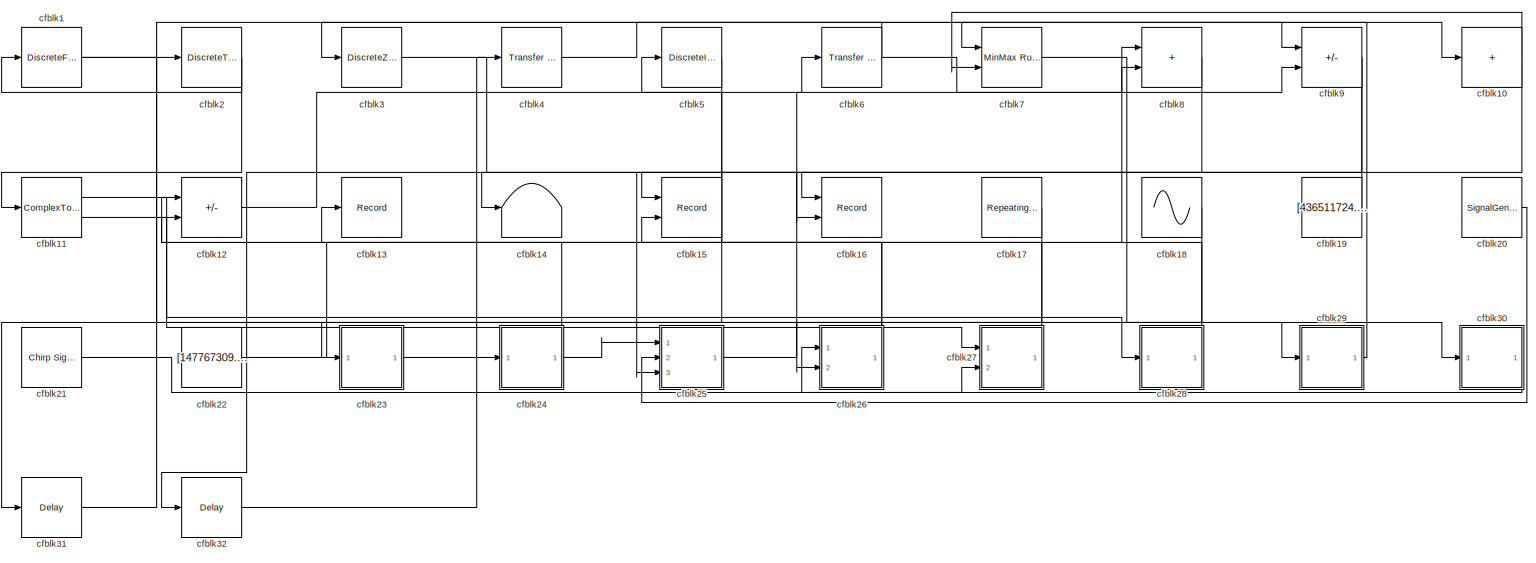
[diagram: root canvas - part 1/1, most of the canvas]
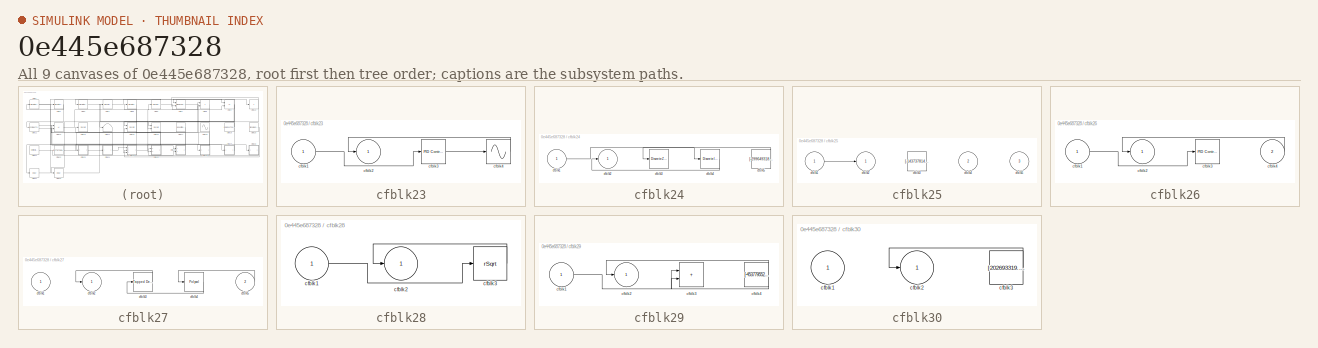
[diagram: thumbnail index - all 9 canvases of the model, root first then tree order]
MODEL slx_0e445e687328
KIND model
CONFIG AbsTol = auto
CONFIG EnableMultiTasking = off
CONFIG FixedStep = auto
CONFIG MaxStep = auto
CONFIG MinStep = auto
CONFIG RelTol = 1e-3
CONFIG SampleTimeConstraint = Unconstrained
CONFIG SolverName = VariableStepAuto
CONFIG StartTime = 0.0
CONFIG StopTime = 10.0
BLOCK [DiscreteFir] cfblk1
  InputPortMap = u0
  OutputPortMap = o0
  Ports = [1, 1]
  SampleTime = 1
BLOCK [Sum] cfblk10
  IconShape = rectangular
  Inputs = +
  Ports = [1, 1]
BLOCK [ComplexToRealImag] cfblk11
  Ports = [1, 2]
BLOCK [Sum] cfblk12
  IconShape = rectangular
  Inputs = +-
  Ports = [2, 1]
BLOCK [Record] cfblk13
  FileSettingsInternal = {"entries":[{"content":{"excelSettings":{"content":{},"type":"Streamout.ExcelSettings"}},"type":"Streamout.FileSettingStorage","uuid":"0dafdf08-92ae-40cf-9e6a-a762af9498c7"}],"packageUris":["http://schema.mathworks.com/mf0/streamout_blocks/R2020a"],"version":"1.0"}
  Ports = [1]
  SignalsInternal = {"entries":[{"content":{"signals":[{"content":{"blockPath":["sampleModel131/cfblk13"],"channel":[],"dimensions":[1],"domain":"sampleModel131/cfblk13","lineColor":"#22b573","plots":[1],"port":1,"sid":[""],"signalID":4575,"signalName":"cfblk26"},"type":"RecordBlkView.Signal","uuid":"084b91c0-7631-4268-b8fb-f11a57527963"}]},"type":"RecordBlkView.InputSignals","uuid":"c79ed039-d22e-410a-beab-e4b3db21d...<+97ch>
  VisualizationBindings = {"sparklinesplugin":{"info":[{"bindingParametersList":[],"subplotID":1}]}}
BLOCK [Terminator] cfblk14
BLOCK [Record] cfblk15
  CompatibilityTag = XY
  FileSettingsInternal = {"entries":[{"content":{"excelSettings":{"content":{},"type":"Streamout.ExcelSettings"}},"type":"Streamout.FileSettingStorage","uuid":"18a37b37-605e-492c-8646-a6a7e7d8f3f6"}],"packageUris":["http://schema.mathworks.com/mf0/streamout_blocks/R2020a"],"version":"1.0"}
  Layout = [1 1]
  Ports = [2]
  SignalsInternal = {"entries":[{"content":{"signals":[{"content":{"blockPath":["sampleModel131/cfblk15"],"channel":[],"dimensions":[1],"domain":"sampleModel131/cfblk15","lineColor":"#a2142f","plots":[1],"port":1,"sid":[""],"signalID":4579,"signalName":"cfblk9"},"type":"RecordBlkView.Signal","uuid":"a4098879-6fb2-4183-a0f4-0e141c41067b"},{"content":{"blockPath":["sampleModel131/cfblk15"],"channel":[],"dimensions":[1]...<+382ch>
  VisualizationBindings = {"xyplotplugin":{"info":[{"series":[{"bindingParametersList":[{"parameter":"X-Axis","signalID":4579,"signalName":"cfblk9"},{"parameter":"Y-Axis","signalID":4583,"signalName":"cfblk28"}],"seriesID":58719}],"subplotID":1}]}}
BLOCK [Record] cfblk16
  CompatibilityTag = XY
  FileSettingsInternal = {"entries":[{"content":{"excelSettings":{"content":{},"type":"Streamout.ExcelSettings"}},"type":"Streamout.FileSettingStorage","uuid":"c014c876-7dc6-492a-b67c-592b12338158"}],"packageUris":["http://schema.mathworks.com/mf0/streamout_blocks/R2020a"],"version":"1.0"}
  Layout = [1 1]
  Ports = [2]
  SignalsInternal = {"entries":[{"content":{"signals":[{"content":{"blockPath":["sampleModel131/cfblk16"],"channel":[],"dimensions":[1],"domain":"sampleModel131/cfblk16","lineColor":"#a2142f","plots":[1],"port":1,"sid":[""],"signalID":4587,"signalName":"cfblk19"},"type":"RecordBlkView.Signal","uuid":"e6d16daa-b932-445c-be97-a0ef0eeb0300"},{"content":{"blockPath":["sampleModel131/cfblk16"],"channel":[],"dimensions":[1...<+382ch>
  VisualizationBindings = {"xyplotplugin":{"info":[{"series":[{"bindingParametersList":[{"parameter":"X-Axis","signalID":4587,"signalName":"cfblk19"},{"parameter":"Y-Axis","signalID":4591,"signalName":"cfblk3"}],"seriesID":17240}],"subplotID":1}]}}
BLOCK [Reference] cfblk17  REF=simulink/Sources/Repeating
Sequence
Stair
  Ports = [0, 1]
  SourceBlock = simulink/Sources/Repeating\nSequence\nStair
  SourceProductBaseCode = SL
  SourceType = Repeating Sequence Stair
BLOCK [Sin] cfblk18
  Amplitude = [-701724139.674451]
  Bias = [453797021.256787]
  Ports = [0, 1]
  SampleTime = 0
BLOCK [Constant] cfblk19
  SampleTime = 1
  Value = [436511724.406986]
BLOCK [DiscreteTransferFcn] cfblk2
  InputPortMap = u0
  Ports = [1, 1]
  SampleTime = 1
BLOCK [SignalGenerator] cfblk20
  Amplitude = [57514629.615493]
  Ports = [0, 1]
  Units = rad/sec
BLOCK [Reference] cfblk21  REF=simulink/Sources/Chirp Signal
  Ports = [0, 1]
  SourceBlock = simulink/Sources/Chirp Signal
  SourceProductBaseCode = SL
  SourceType = chirp
BLOCK [Constant] cfblk22
  SampleTime = 1
  Value = [147767309.254544]
BLOCK [SubSystem] cfblk23
  Ports = [1, 1]
  RequestExecContextInheritance = off
BLOCK [Inport] cfblk23/cfblk1
BLOCK [Outport] cfblk23/cfblk2
BLOCK [Reference] cfblk23/cfblk3  REF=slpidlib/PID Controller
  Ports = [1, 1]
  SourceBlock = slpidlib/PID Controller
  SourceProductBaseCode = SL
  SourceType = PID 1dof
BLOCK [Sin] cfblk23/cfblk4
  Ports = [1, 1]
  SampleTime = 0
  TimeSource = Use external signal
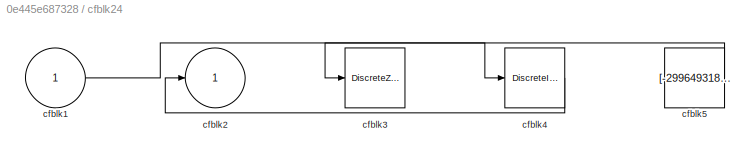
BLOCK [SubSystem] cfblk24
  Ports = [1, 1]
  RequestExecContextInheritance = off
BLOCK [Inport] cfblk24/cfblk1
BLOCK [Outport] cfblk24/cfblk2
BLOCK [DiscreteZeroPole] cfblk24/cfblk3
  Gain = 1
  Poles = [0 0.5]
BLOCK [DiscreteIntegrator] cfblk24/cfblk4
  ICPrevOutput = DiscIntNeverNeededParam
  ICPrevScaledInput = DiscIntNeverNeededParam
  InitialConditionSetting = Auto
  Ports = [1, 1]
BLOCK [Constant] cfblk24/cfblk5
  SampleTime = 1
  Value = [-299649318.739000]
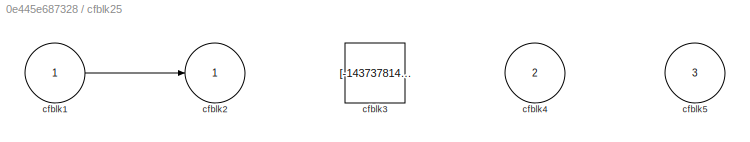
BLOCK [SubSystem] cfblk25
  Ports = [3, 1]
  RequestExecContextInheritance = off
BLOCK [Inport] cfblk25/cfblk1
BLOCK [Outport] cfblk25/cfblk2
BLOCK [Constant] cfblk25/cfblk3
  SampleTime = 1
  Value = [-143737814.080196]
BLOCK [Inport] cfblk25/cfblk4
  Port = 2
BLOCK [Inport] cfblk25/cfblk5
  Port = 3
BLOCK [SubSystem] cfblk26
  Ports = [2, 1]
  RequestExecContextInheritance = off
BLOCK [Inport] cfblk26/cfblk1
BLOCK [Outport] cfblk26/cfblk2
BLOCK [Reference] cfblk26/cfblk3  REF=slpidlib/PID Controller
  Ports = [1, 1]
  SourceBlock = slpidlib/PID Controller
  SourceProductBaseCode = SL
  SourceType = PID 1dof
BLOCK [Inport] cfblk26/cfblk4
  Port = 2
BLOCK [SubSystem] cfblk27
  Ports = [2, 1]
  RequestExecContextInheritance = off
BLOCK [Inport] cfblk27/cfblk1
BLOCK [Outport] cfblk27/cfblk2
BLOCK [Reference] cfblk27/cfblk3  REF=simulink/Discrete/Tapped Delay
  Ports = [1, 1]
  SourceBlock = simulink/Discrete/Tapped Delay
  SourceProductBaseCode = SL
  SourceType = Tapped Delay Line
BLOCK [Polyval] cfblk27/cfblk4
  Coefs = [ +2.081618890e-019, -1.441693666e-014, +4.719686976e-010, -8.536869453e-006, +1.621573104e-001, -8.087801117e+001 ]
BLOCK [Inport] cfblk27/cfblk5
  Port = 2
BLOCK [SubSystem] cfblk28
  Ports = [1, 1]
  RequestExecContextInheritance = off
BLOCK [Inport] cfblk28/cfblk1
BLOCK [Outport] cfblk28/cfblk2
BLOCK [Sqrt] cfblk28/cfblk3
  AlgorithmType = Newton-Raphson
  Operator = rSqrt
BLOCK [SubSystem] cfblk29
  Ports = [1, 1]
  RequestExecContextInheritance = off
BLOCK [Inport] cfblk29/cfblk1
BLOCK [Outport] cfblk29/cfblk2
BLOCK [Sum] cfblk29/cfblk3
  IconShape = rectangular
  Ports = [2, 1]
BLOCK [Constant] cfblk29/cfblk4
  SampleTime = 1
  Value = [-453779552.556818]
BLOCK [DiscreteZeroPole] cfblk3
  Gain = 1
  Poles = [0 0.5]
BLOCK [SubSystem] cfblk30
  Ports = [1, 1]
  RequestExecContextInheritance = off
BLOCK [Inport] cfblk30/cfblk1
BLOCK [Outport] cfblk30/cfblk2
BLOCK [Constant] cfblk30/cfblk3
  SampleTime = 1
  Value = [202693319.170562]
BLOCK [Delay] cfblk31
  InputPortMap = u0
  Ports = [1, 1]
  SampleTime = 1
BLOCK [Delay] cfblk32
  InputPortMap = u0
  Ports = [1, 1]
  SampleTime = 1
BLOCK [Reference] cfblk4  REF=simulink/Discrete/Transfer Fcn
Lead or Lag
  Ports = [1, 1]
  SourceBlock = simulink/Discrete/Transfer Fcn\nLead or Lag
  SourceProductBaseCode = SL
  SourceType = Lead or Lag Compensator
BLOCK [DiscreteIntegrator] cfblk5
  ICPrevOutput = DiscIntNeverNeededParam
  ICPrevScaledInput = DiscIntNeverNeededParam
  InitialConditionSetting = Auto
  Ports = [1, 1]
BLOCK [Reference] cfblk6  REF=simulink/Discrete/Transfer Fcn
Lead or Lag
  Ports = [1, 1]
  SourceBlock = simulink/Discrete/Transfer Fcn\nLead or Lag
  SourceProductBaseCode = SL
  SourceType = Lead or Lag Compensator
BLOCK [Reference] cfblk7  REF=simulink/Math
Operations/MinMax
Running
Resettable
  Ports = [2, 1]
  SourceBlock = simulink/Math\nOperations/MinMax\nRunning\nResettable
  SourceProductBaseCode = SL
  SourceType = MinMax Running Resettable
BLOCK [Sum] cfblk8
  IconShape = rectangular
  Ports = [2, 1]
BLOCK [Sum] cfblk9
  IconShape = rectangular
  Inputs = -+
  Ports = [2, 1]
NET cfblk10:1 -> cfblk25:3, cfblk7:2
LINE cfblk11:1 -> cfblk27:1
LINE cfblk11:2 -> cfblk28:1
LINE cfblk12:1 -> cfblk6:1
LINE cfblk17:1 -> cfblk26:2
LINE cfblk18:1 -> cfblk23:1
LINE cfblk19:1 -> cfblk16:1
NET cfblk1:1 -> cfblk29:1, cfblk9:1
LINE cfblk20:1 -> cfblk25:2
LINE cfblk21:1 -> cfblk27:2
LINE cfblk22:1 -> cfblk8:2
LINE cfblk23/cfblk1:1 -> cfblk23/cfblk3:1
LINE cfblk23/cfblk3:1 -> cfblk23/cfblk4:1
LINE cfblk23/cfblk4:1 -> cfblk23/cfblk2:1
LINE cfblk23:1 -> cfblk24:1
LINE cfblk24/cfblk1:1 -> cfblk24/cfblk4:1
LINE cfblk24/cfblk4:1 -> cfblk24/cfblk2:1
LINE cfblk24/cfblk5:1 -> cfblk24/cfblk3:1
NET cfblk24:1 -> cfblk12:1, cfblk25:1
LINE cfblk25/cfblk1:1 -> cfblk25/cfblk2:1
LINE cfblk25:1 -> cfblk8:1
LINE cfblk26/cfblk1:1 -> cfblk26/cfblk3:1
LINE cfblk26/cfblk4:1 -> cfblk26/cfblk2:1
NET cfblk26:1 -> cfblk12:2, cfblk13:1
LINE cfblk27/cfblk3:1 -> cfblk27/cfblk2:1
LINE cfblk27/cfblk4:1 -> cfblk27/cfblk3:1
LINE cfblk27/cfblk5:1 -> cfblk27/cfblk4:1
LINE cfblk27:1 -> cfblk5:1
LINE cfblk28/cfblk1:1 -> cfblk28/cfblk3:1
LINE cfblk28/cfblk3:1 -> cfblk28/cfblk2:1
LINE cfblk28:1 -> cfblk15:2
LINE cfblk29/cfblk1:1 -> cfblk29/cfblk3:1
NET cfblk29/cfblk4:1 -> cfblk29/cfblk2:1, cfblk29/cfblk3:2
LINE cfblk29:1 -> cfblk7:1
NET cfblk2:1 -> cfblk11:1, cfblk1:1
LINE cfblk30/cfblk3:1 -> cfblk30/cfblk2:1
LINE cfblk30:1 -> cfblk26:1
LINE cfblk31:1 -> cfblk2:1
LINE cfblk32:1 -> cfblk4:1
LINE cfblk3:1 -> cfblk16:2
LINE cfblk4:1 -> cfblk10:1
LINE cfblk5:1 -> cfblk31:1
NET cfblk6:1 -> cfblk3:1, cfblk9:2
LINE cfblk7:1 -> cfblk30:1
LINE cfblk8:1 -> cfblk32:1
NET cfblk9:1 -> cfblk14:1, cfblk15:1
note: NET lines group one-source signal fan-out (src -> all destinations, sorted); 1:1 wires keep LINE
